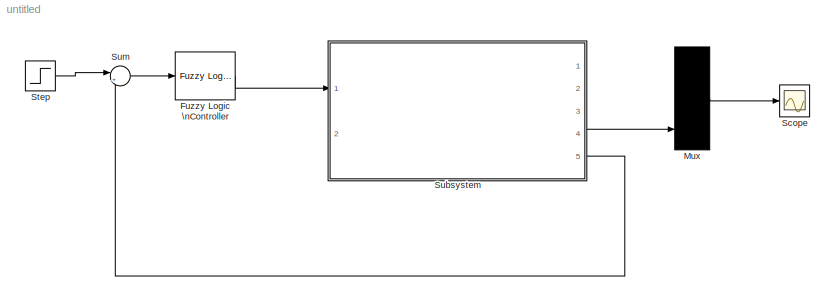
MODEL untitled
KIND model
BLOCK [Reference] Fuzzy Logic \nController  REF=fuzblock/Fuzzy Logic \nController  (lib defined in mdl_858b3b3e7478)
  Ports = [1, 1]
  ShowPortLabels = on
  SourceBlock = fuzblock/Fuzzy Logic \nController
  SourceType = FIS
  fis = inferente
BLOCK [Mux] Mux
  DisplayOption = bar
  Ports = [4, 1]
BLOCK [Scope] Scope
  DataFormat = StructureWithTime
  NumInputPorts = 1
  Ports = [1]
  ZoomMode = xonly
BLOCK [Step] Step
  SampleTime = 0
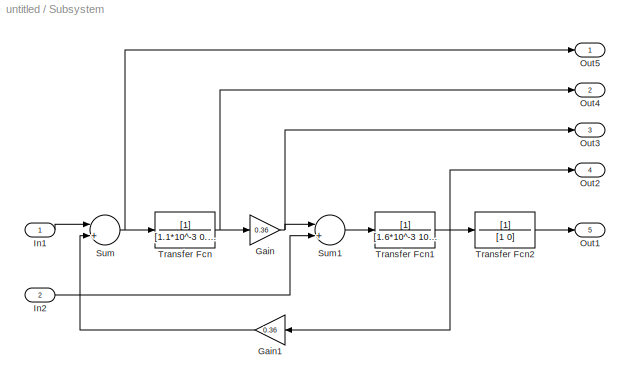
BLOCK [SubSystem] Subsystem
  MinAlgLoopOccurrences = off
  Ports = [2, 5]
  RTWSystemCode = Auto
  TreatAsAtomicUnit = off
BLOCK [Gain] Subsystem/Gain
  Gain = 0.36
  OutDataTypeMode = Inherit via internal rule
  ParameterDataTypeMode = Inherit via internal rule
  SaturateOnIntegerOverflow = off
BLOCK [Gain] Subsystem/Gain1
  Gain = 0.36
  OutDataTypeMode = Inherit via internal rule
  ParameterDataTypeMode = Inherit via internal rule
  SaturateOnIntegerOverflow = off
BLOCK [Inport] Subsystem/In1
  IconDisplay = Port number
  LatchInput = off
  Port = 1
BLOCK [Inport] Subsystem/In2
  IconDisplay = Port number
  LatchInput = off
  Port = 2
BLOCK [Outport] Subsystem/Out1
  BusOutputAsStruct = off
  IconDisplay = Port number
  Port = 5
BLOCK [Outport] Subsystem/Out2
  BusOutputAsStruct = off
  IconDisplay = Port number
  Port = 4
BLOCK [Outport] Subsystem/Out3
  BusOutputAsStruct = off
  IconDisplay = Port number
  Port = 3
BLOCK [Outport] Subsystem/Out4
  BusOutputAsStruct = off
  IconDisplay = Port number
  Port = 2
BLOCK [Outport] Subsystem/Out5
  BusOutputAsStruct = off
  IconDisplay = Port number
BLOCK [Sum] Subsystem/Sum
  InputSameDT = off
  Inputs = |+-
  OutDataTypeMode = Inherit via internal rule
  Ports = [2, 1]
  SaturateOnIntegerOverflow = off
BLOCK [Sum] Subsystem/Sum1
  InputSameDT = off
  Inputs = |+-
  OutDataTypeMode = Inherit via internal rule
  Ports = [2, 1]
  SaturateOnIntegerOverflow = off
BLOCK [TransferFcn] Subsystem/Transfer Fcn
  Denominator = [1.1*10^-3 0.7]
BLOCK [TransferFcn] Subsystem/Transfer Fcn1
  Denominator = [1.6*10^-3 10^-3]
BLOCK [TransferFcn] Subsystem/Transfer Fcn2
  Denominator = [1 0]
BLOCK [Sum] Sum
  IconShape = round
  InputSameDT = off
  Inputs = |+-
  OutDataTypeMode = Inherit via internal rule
  Ports = [2, 1]
  SaturateOnIntegerOverflow = off
LINE Fuzzy Logic \nController:1 -> Subsystem:1
LINE Mux:1 -> Scope:1
LINE Step:1 -> Sum:1
LINE Subsystem/Gain1:1 -> Subsystem/Sum:2
NET Subsystem/Gain:1 -> Subsystem/Out3:1, Subsystem/Sum1:1
LINE Subsystem/In1:1 -> Subsystem/Sum:1
LINE Subsystem/In2:1 -> Subsystem/Sum1:2
LINE Subsystem/Sum1:1 -> Subsystem/Transfer Fcn1:1
NET Subsystem/Sum:1 -> Subsystem/Out5:1, Subsystem/Transfer Fcn:1
NET Subsystem/Transfer Fcn1:1 -> Subsystem/Gain1:1, Subsystem/Out2:1, Subsystem/Transfer Fcn2:1
LINE Subsystem/Transfer Fcn2:1 -> Subsystem/Out1:1
NET Subsystem/Transfer Fcn:1 -> Subsystem/Gain:1, Subsystem/Out4:1
LINE Subsystem:4 -> Mux:4
LINE Subsystem:5 -> Sum:2
LINE Sum:1 -> Fuzzy Logic \nController:1
note: NET lines group one-source signal fan-out (src -> all destinations, sorted); 1:1 wires keep LINE
